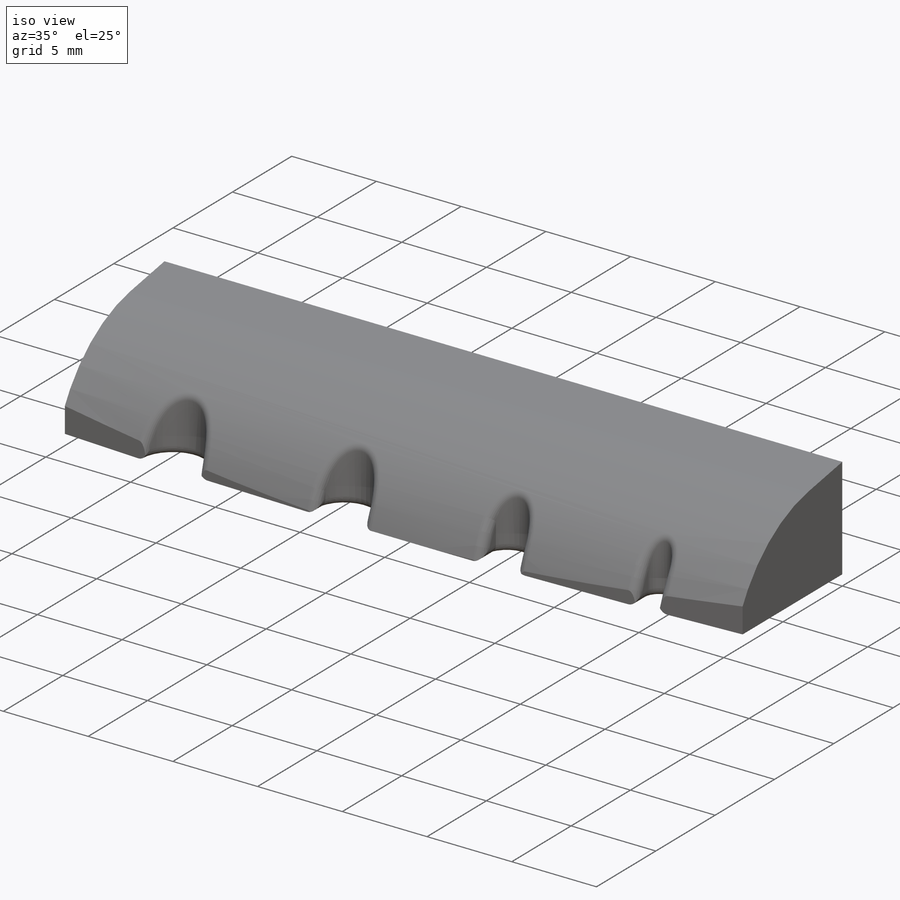
[diagram: iso view]
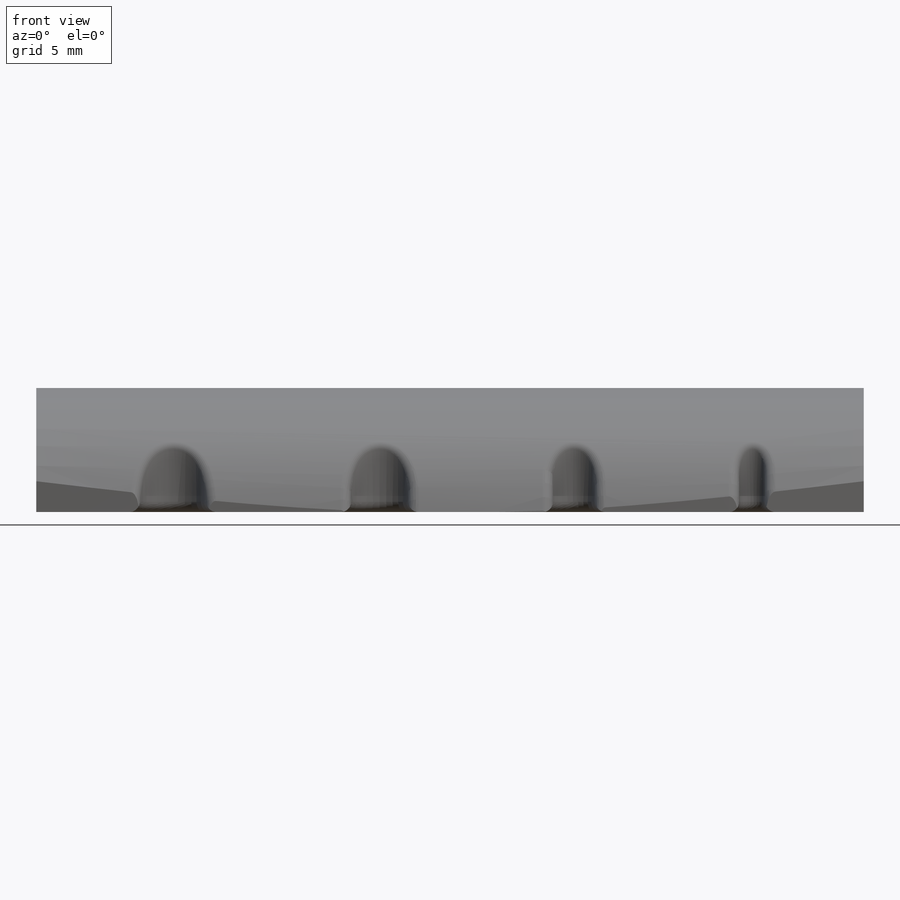
[diagram: front view]
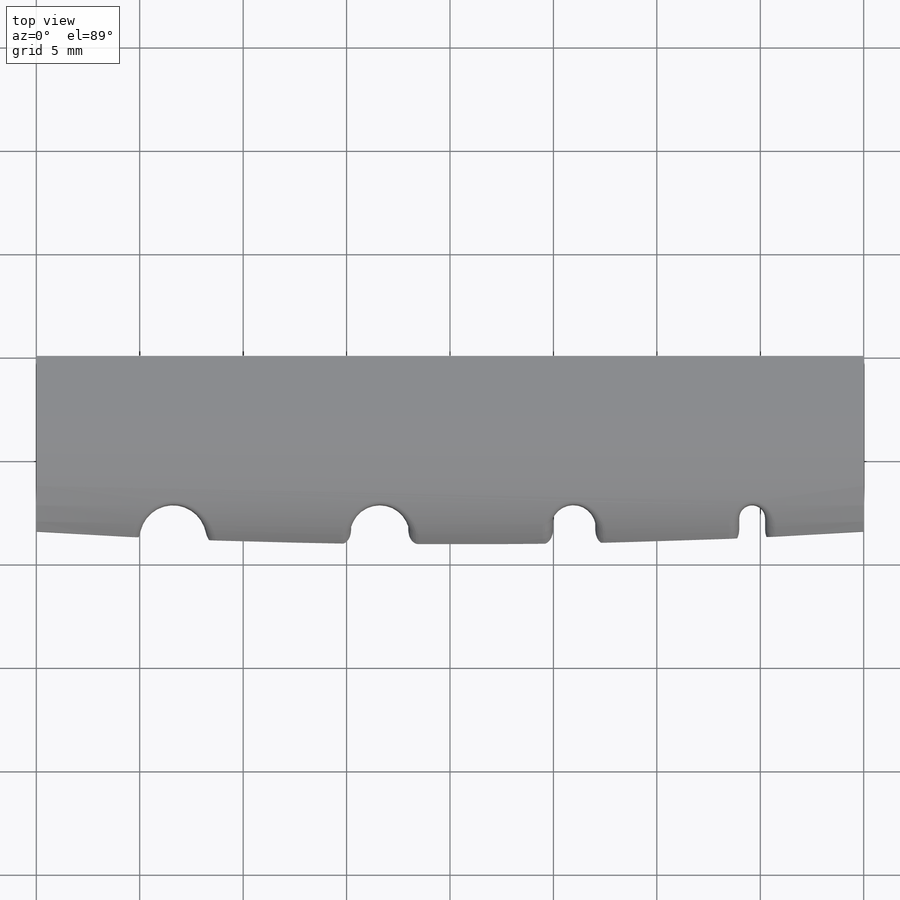
[diagram: top view]
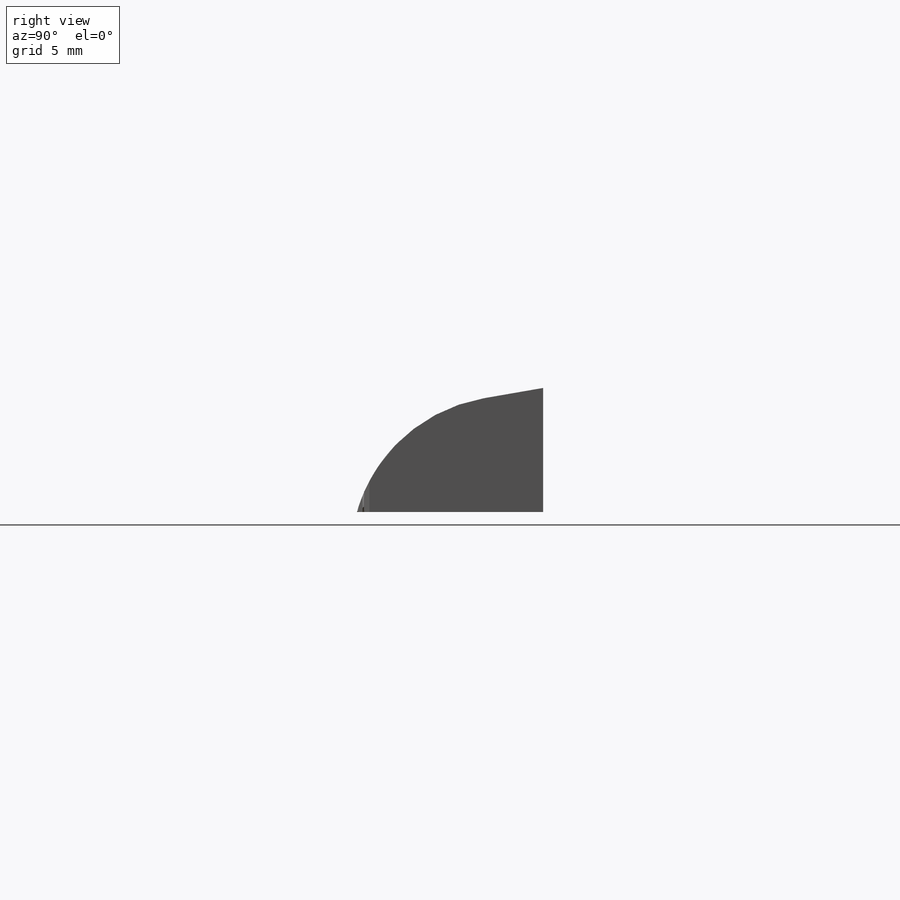
[diagram: right view]
SOLIDWORKS PART (.sldprt)
format: sldprt  version: not decoded by parser v0  size: 381,952 bytes
history: native  units: mm
features: sketch x4, cut_extrude x3, material x1, extrude x1, fillet x1 (+11 scaffold rows collapsed)
feature tree (21):
  scaffold x11  (default folders/planes/origin — collapsed)
  material  "Material <not specified>"
  sketch  "Sketch1"  dims[D1=40.0mm D2=6.0mm]
  extrude  "Boss-Extrude1"  Depth=9mm
  sketch  "Sketch2"  dims[c1.D2=300.0mm c1.D3=~322.79371mm c1.D1=8.4mm c2.D3=~322.793546mm]
  cut_extrude  "Cut-Extrude1"  [1 undecoded]
  sketch  "Sketch3"  dims[c1.D3=7.75mm c1.D1=2.5mm c1.D2=~2.985301mm c2.D3=9.0mm]
  cut_extrude  "Cut-Extrude2"  [1 undecoded]
  sketch  "Sketch5"  dims[c1.D3=~1.611373mm c1.D9=~1.440632mm c1.D10=~1.08328mm c1.D11=~0.625078mm c1.D1=5.0mm c1.D2=3.22mm c2.D3=7.0mm c2.D4=2.75mm c2.D5=7.0mm c2.D6=2.0mm c2.D7=7.0mm c2.D8=1.25mm c2.D9=~4.768102mm c2.D12=~5.960567mm c2.D13=~6.090056mm c2.D14=~7.021505mm c3.D12=~5.960567mm]
  cut_extrude  "Cut-Extrude3"  [1 undecoded]
  fillet  "Fillet1"  Radius=0.5mm
decode coverage: 6 of 9 modeling features carry decoded parameters
note: ~ marks probable driven/reference dimensions
note: 3 parameter values undecoded
summary: no parameter record found for 3 features
note: suppression state not decoded; provenance and decode notes live in map.json
